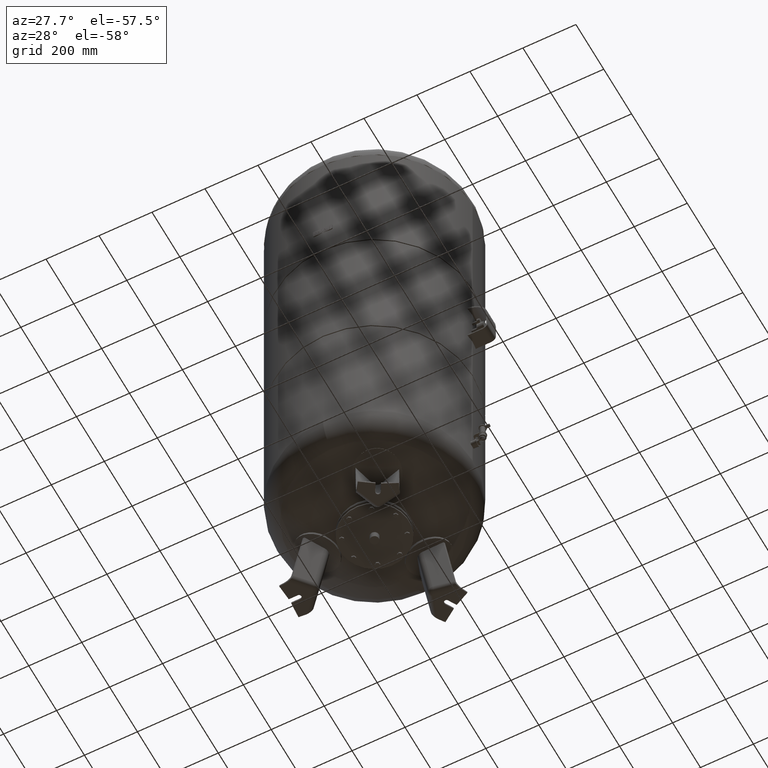
[diagram: clean part render]
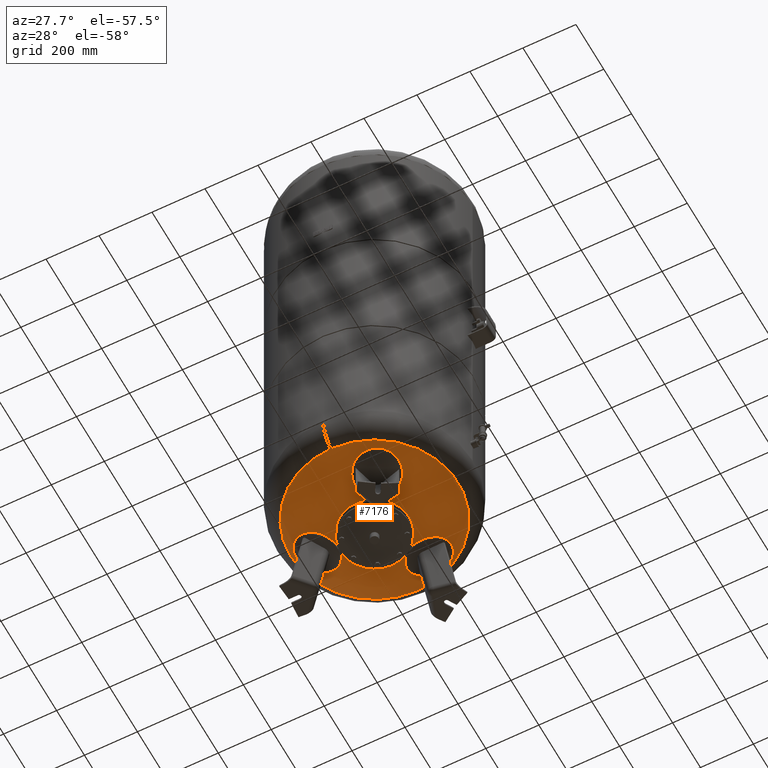
[diagram: same view with one face highlighted and labeled with its STEP entity id]
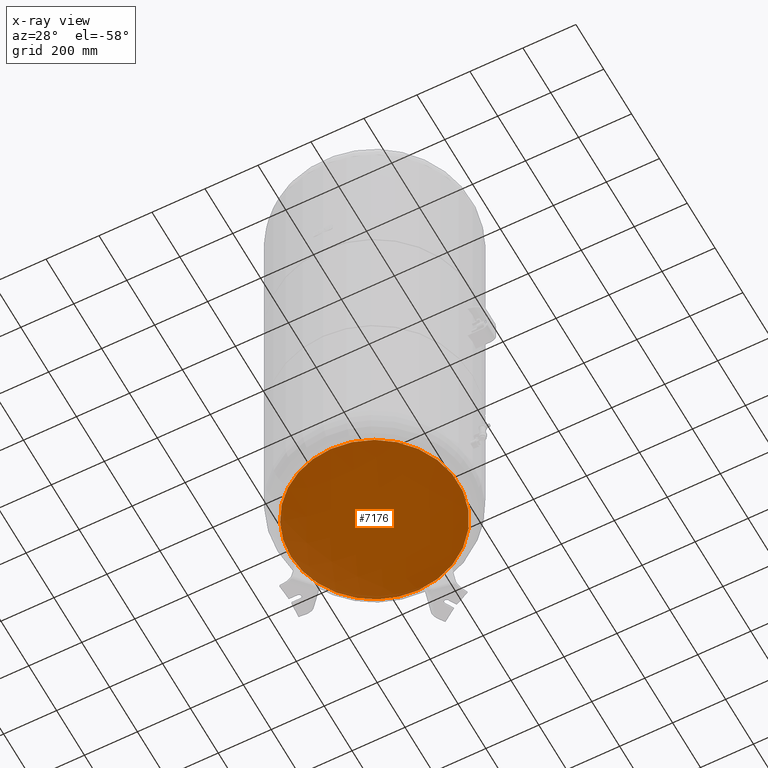
[diagram: x-ray of the same camera — body ghosted, the highlighted face saturated]
A machine part, auxiliary view. The second image highlights one B-rep face of the part: STEP entity #7176.
The next image is the same camera in x-ray: the body ghosted, the highlighted face saturated — about 0% of this face is hidden behind the body in this view.
In plain terms, the highlighted spherical surface has radius 594 mm.
Its self-contained STEP definition (entity closure, byte-faithful):
#7115=CARTESIAN_POINT('',(0.0,-315.931034482758610,274.985505725079410));
#7116=VERTEX_POINT('',#7115);
#7132=CARTESIAN_POINT('',(-3.868912E-014,315.931034482758610,274.985505725079630));
#7133=VERTEX_POINT('',#7132);
#7141=CARTESIAN_POINT('',(-315.931034482758610,-1.671377E-014,274.985505725079520));
#7142=VERTEX_POINT('',#7141);
#7143=CARTESIAN_POINT('',(0.0,-1.671377E-014,274.985505725079520));
#7144=DIRECTION('',(0.0,0.0,1.0));
#7145=DIRECTION('',(-1.0,0.0,0.0));
#7146=AXIS2_PLACEMENT_3D('',#7143,#7144,#7145);
#7147=CIRCLE('',#7146,315.931034482758610);
#7148=EDGE_CURVE('',#7133,#7142,#7147,.T.);
#7150=CARTESIAN_POINT('',(0.0,-1.671377E-014,274.985505725079520));
#7151=DIRECTION('',(0.0,0.0,1.0));
#7152=DIRECTION('',(-1.0,0.0,0.0));
#7153=AXIS2_PLACEMENT_3D('',#7150,#7151,#7152);
#7154=CIRCLE('',#7153,315.931034482758610);
#7155=EDGE_CURVE('',#7142,#7116,#7154,.T.);
#7160=CARTESIAN_POINT('',(0.0,-1.091160E-013,778.0));
#7161=DIRECTION('',(0.0,-1.0,0.0));
#7162=DIRECTION('',(1.0,0.0,0.0));
#7163=AXIS2_PLACEMENT_3D('',#7160,#7161,#7162);
#7164=SPHERICAL_SURFACE('',#7163,594.0);
#7165=ORIENTED_EDGE('',*,*,#7155,.F.);
#7166=ORIENTED_EDGE('',*,*,#7148,.F.);
#7167=CARTESIAN_POINT('',(0.0,-1.671377E-014,274.985505725079520));
#7168=DIRECTION('',(0.0,0.0,1.0));
#7169=DIRECTION('',(-1.0,0.0,0.0));
#7170=AXIS2_PLACEMENT_3D('',#7167,#7168,#7169);
#7171=CIRCLE('',#7170,315.931034482758610);
#7172=EDGE_CURVE('',#7116,#7133,#7171,.T.);
#7173=ORIENTED_EDGE('',*,*,#7172,.F.);
#7174=EDGE_LOOP('',(#7165,#7166,#7173));
#7175=FACE_OUTER_BOUND('',#7174,.T.);
#7176=ADVANCED_FACE('',(#7175),#7164,.T.);